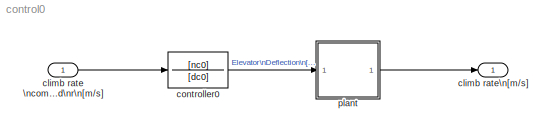
MODEL control0
KIND model
BLOCK [Inport] climb rate \ncommand\nr\n[m//s]
  IconDisplay = Port number
  SID = 1
BLOCK [Outport] climb rate\n[m//s]
  IconDisplay = Port number
  SID = 16
BLOCK [TransferFcn] controller0
  Denominator = [dc0]
  Numerator = [nc0]
  SID = 2
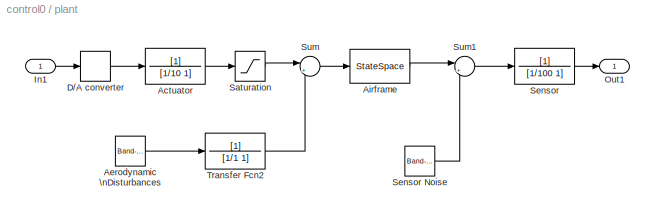
BLOCK [SubSystem] plant
  FunctionWithSeparateData = off
  MaskHideContents = off
  MinAlgLoopOccurrences = off
  Opaque = off
  Ports = [1, 1]
  PropExecContextOutsideSubsystem = off
  RTWSystemCode = Auto
  RequestExecContextInheritance = off
  SID = 3
BLOCK [TransferFcn] plant/Actuator
  Denominator = [1/10 1]
  SID = 5
BLOCK [Reference] plant/Aerodynamic \nDisturbances  REF=simulink/Sources/Band-Limited\nWhite Noise
  Cov = [0.0]
  Ports = [0, 1]
  SID = 6
  SourceBlock = simulink/Sources/Band-Limited\nWhite Noise
  SourceType = Band-Limited White Noise.
  Ts = 0.01
  VectorParams1D = on
  seed = [13452]
BLOCK [StateSpace] plant/Airframe
  A = A0
  B = B0
  C = C0
  D = D0
  SID = 7
  X0 = IC0
BLOCK [Quantizer] plant/D//A converter
  QuantizationInterval = 0.1
  SID = 8
BLOCK [Inport] plant/In1
  IconDisplay = Port number
  SID = 4
BLOCK [Outport] plant/Out1
  IconDisplay = Port number
  SID = 15
BLOCK [Saturate] plant/Saturation
  InputPortMap = u0
  LowerLimit = -10
  Ports = [1, 1]
  SID = 9
  UpperLimit = 10
BLOCK [TransferFcn] plant/Sensor
  Denominator = [1/100 1]
  SID = 10
BLOCK [Reference] plant/Sensor Noise  REF=simulink/Sources/Band-Limited\nWhite Noise
  Cov = [0.00001]
  Ports = [0, 1]
  SID = 11
  SourceBlock = simulink/Sources/Band-Limited\nWhite Noise
  SourceType = Band-Limited White Noise.
  Ts = 0.01
  VectorParams1D = on
  seed = [23341]
BLOCK [Sum] plant/Sum
  IconShape = round
  InputSameDT = off
  Inputs = |++
  OutDataTypeStr = Inherit: Inherit via internal rule
  Ports = [2, 1]
  SID = 12
  SaturateOnIntegerOverflow = off
BLOCK [Sum] plant/Sum1
  IconShape = round
  InputSameDT = off
  Inputs = |++
  OutDataTypeStr = Inherit: Inherit via internal rule
  Ports = [2, 1]
  SID = 13
  SaturateOnIntegerOverflow = off
BLOCK [TransferFcn] plant/Transfer Fcn2
  Denominator = [1/1 1]
  SID = 14
LINE climb rate \ncommand\nr\n[m//s]:1 -> controller0:1
LINE controller0:1 -> plant:1
LINE plant/Actuator:1 -> plant/Saturation:1
LINE plant/Aerodynamic \nDisturbances:1 -> plant/Transfer Fcn2:1
LINE plant/Airframe:1 -> plant/Sum1:1
LINE plant/D//A converter:1 -> plant/Actuator:1
LINE plant/In1:1 -> plant/D//A converter:1
LINE plant/Saturation:1 -> plant/Sum:1
LINE plant/Sensor Noise:1 -> plant/Sum1:2
LINE plant/Sensor:1 -> plant/Out1:1
LINE plant/Sum1:1 -> plant/Sensor:1
LINE plant/Sum:1 -> plant/Airframe:1
LINE plant/Transfer Fcn2:1 -> plant/Sum:2
LINE plant:1 -> climb rate\n[m//s]:1
